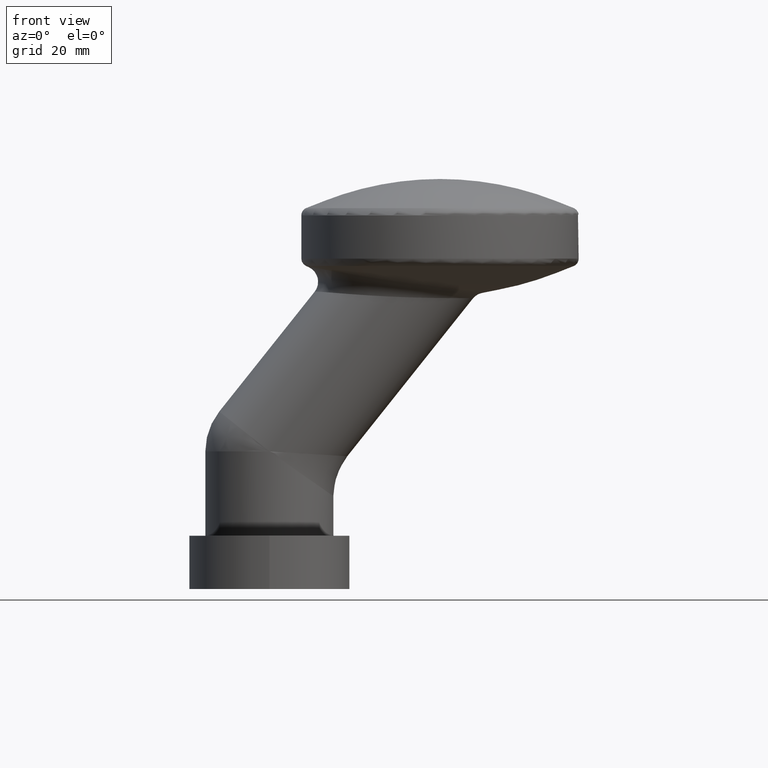
[diagram: clean part render]
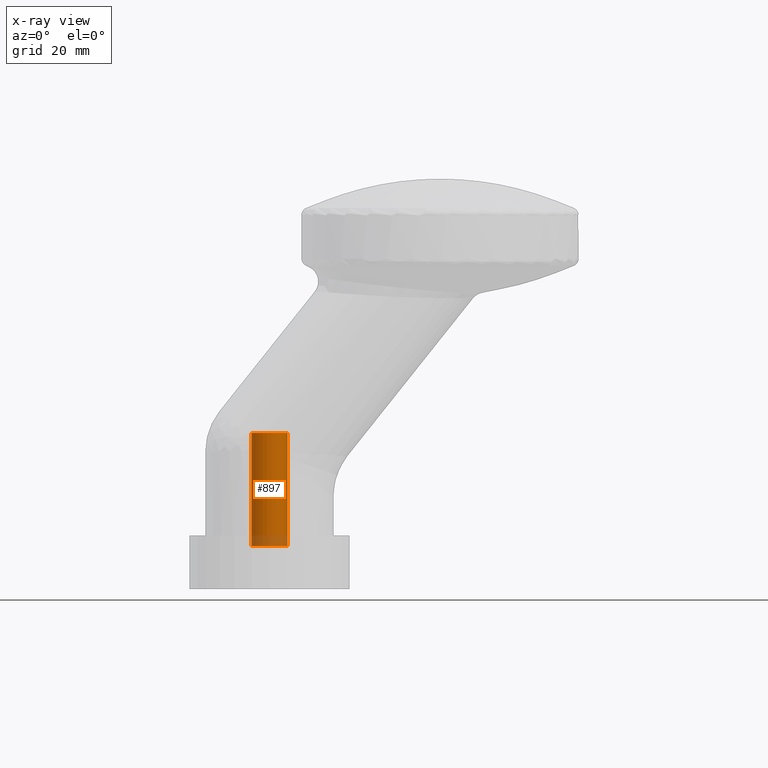
[diagram: x-ray — body ghosted, one internal face saturated and labeled with its STEP entity id]
A machine part, front view, then the same camera in x-ray: the body is ghosted and one INTERNAL B-rep face — a face not visible from any outside direction — is saturated and labeled: STEP entity #897.
In plain terms, the highlighted cylindrical surface (bore or boss wall) has radius 3.4 mm, axis along (-0, -0, -1).
Its self-contained STEP definition (entity closure, byte-faithful):
#542 = CARTESIAN_POINT ( 'NONE',  ( -1.512763812405992488E-15, -0.6499999999999943601, -3.000000000000000000 ) ) ;
#551 = DIRECTION ( 'NONE',  ( -1.000000000000000000, 0.000000000000000000, 0.000000000000000000 ) ) ;
#729 = AXIS2_PLACEMENT_3D ( 'NONE', #6632, #1843, #551 ) ;
#897 = ADVANCED_FACE ( 'NONE', ( #14802, #9258 ), #15190, .F. ) ;
#1480 = CIRCLE ( 'NONE', #729, 3.399999999999996803 ) ;
#1839 = DIRECTION ( 'NONE',  ( -0.000000000000000000, -0.000000000000000000, -1.000000000000000000 ) ) ;
#1843 = DIRECTION ( 'NONE',  ( 0.000000000000000000, 0.000000000000000000, -1.000000000000000000 ) ) ;
#1984 = VERTEX_POINT ( 'NONE', #11571 ) ;
#4649 = ORIENTED_EDGE ( 'NONE', *, *, #13024, .T. ) ;
#5584 = VERTEX_POINT ( 'NONE', #9236 ) ;
#5599 = CARTESIAN_POINT ( 'NONE',  ( -1.512763812405992488E-15, -0.6499999999999943601, 19.25000000000000000 ) ) ;
#5638 = DIRECTION ( 'NONE',  ( -0.000000000000000000, -0.000000000000000000, -1.000000000000000000 ) ) ;
#6318 = EDGE_LOOP ( 'NONE', ( #10377 ) ) ;
#6632 = CARTESIAN_POINT ( 'NONE',  ( -1.512763812405992488E-15, -0.6499999999999943601, -1.999999999999997780 ) ) ;
#6783 = EDGE_CURVE ( 'NONE', #1984, #1984, #7604, .T. ) ;
#7604 = CIRCLE ( 'NONE', #8245, 3.399999999999995470 ) ;
#8245 = AXIS2_PLACEMENT_3D ( 'NONE', #5599, #1839, #14145 ) ;
#8539 = EDGE_LOOP ( 'NONE', ( #4649 ) ) ;
#9236 = CARTESIAN_POINT ( 'NONE',  ( -3.399999999999998135, -0.6499999999999943601, -1.999999999999997780 ) ) ;
#9258 = FACE_OUTER_BOUND ( 'NONE', #6318, .T. ) ;
#9936 = AXIS2_PLACEMENT_3D ( 'NONE', #542, #5638, #10347 ) ;
#10347 = DIRECTION ( 'NONE',  ( -1.000000000000000000, 0.000000000000000000, 0.000000000000000000 ) ) ;
#10377 = ORIENTED_EDGE ( 'NONE', *, *, #6783, .F. ) ;
#11571 = CARTESIAN_POINT ( 'NONE',  ( -3.399999999999996803, -0.6499999999999943601, 19.25000000000000000 ) ) ;
#13024 = EDGE_CURVE ( 'NONE', #5584, #5584, #1480, .T. ) ;
#14145 = DIRECTION ( 'NONE',  ( -1.000000000000000000, 0.000000000000000000, 0.000000000000000000 ) ) ;
#14802 = FACE_OUTER_BOUND ( 'NONE', #8539, .T. ) ;
#15190 = CYLINDRICAL_SURFACE ( 'NONE', #9936, 3.399999999999996803 ) ;